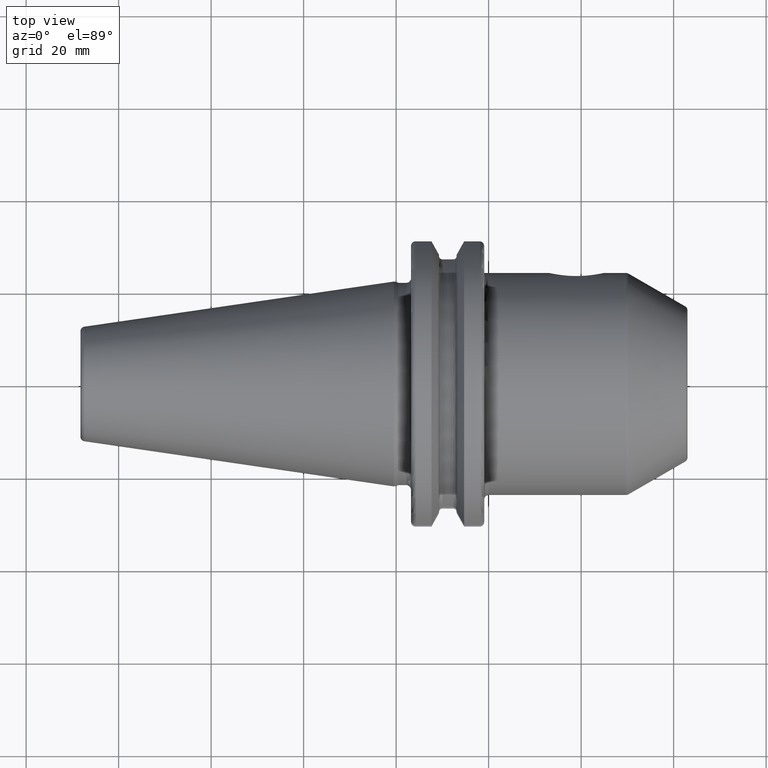
[diagram: clean part render]
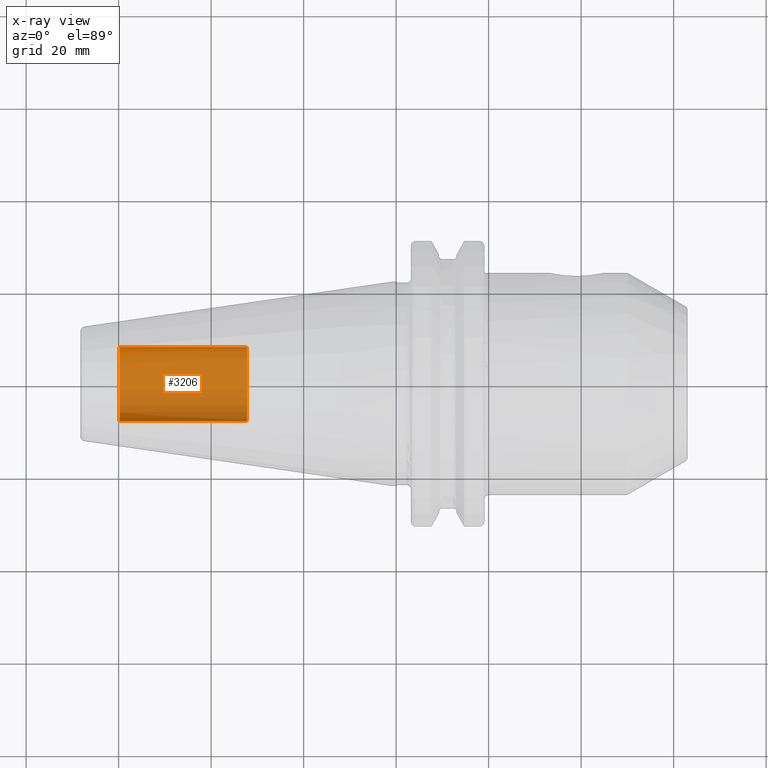
[diagram: x-ray — body ghosted, one internal face saturated and labeled with its STEP entity id]
A machine part, top view, then the same camera in x-ray: the body is ghosted and one INTERNAL B-rep face — a face not visible from any outside direction — is saturated and labeled: STEP entity #3206.
In plain terms, the highlighted cylindrical surface (partial cylindrical patch) has radius 8.0028 mm, axis along (1, 0, 0).
Its self-contained STEP definition (entity closure, byte-faithful):
#3141=CARTESIAN_POINT('',(-5.98E1,0.E0,0.E0));
#3142=DIRECTION('',(-1.E0,0.E0,0.E0));
#3143=DIRECTION('',(0.E0,1.E0,0.E0));
#3144=AXIS2_PLACEMENT_3D('',#3141,#3142,#3143);
#3146=DIRECTION('',(1.E0,0.E0,0.E0));
#3147=VECTOR('',#3146,2.755E1);
#3148=CARTESIAN_POINT('',(-5.98E1,-8.00275E0,0.E0));
#3149=LINE('',#3148,#3147);
#3155=DIRECTION('',(1.E0,0.E0,0.E0));
#3156=VECTOR('',#3155,2.755E1);
#3157=CARTESIAN_POINT('',(-5.98E1,8.00275E0,0.E0));
#3158=LINE('',#3157,#3156);
#3164=CARTESIAN_POINT('',(-3.225E1,0.E0,0.E0));
#3165=DIRECTION('',(1.E0,0.E0,0.E0));
#3166=DIRECTION('',(0.E0,-1.E0,0.E0));
#3167=AXIS2_PLACEMENT_3D('',#3164,#3165,#3166);
#3179=CARTESIAN_POINT('',(-5.98E1,8.00275E0,0.E0));
#3180=CARTESIAN_POINT('',(-5.98E1,-8.00275E0,0.E0));
#3181=VERTEX_POINT('',#3179);
#3182=VERTEX_POINT('',#3180);
#3183=CARTESIAN_POINT('',(-3.225E1,8.00275E0,0.E0));
#3184=CARTESIAN_POINT('',(-3.225E1,-8.00275E0,0.E0));
#3185=VERTEX_POINT('',#3183);
#3186=VERTEX_POINT('',#3184);
#3191=CARTESIAN_POINT('',(-5.98E1,0.E0,0.E0));
#3192=DIRECTION('',(1.E0,0.E0,0.E0));
#3193=DIRECTION('',(0.E0,1.E0,0.E0));
#3194=AXIS2_PLACEMENT_3D('',#3191,#3192,#3193);
#3195=CYLINDRICAL_SURFACE('',#3194,8.00275E0);
#3197=ORIENTED_EDGE('',*,*,#3196,.T.);
#3199=ORIENTED_EDGE('',*,*,#3198,.T.);
#3201=ORIENTED_EDGE('',*,*,#3200,.T.);
#3203=ORIENTED_EDGE('',*,*,#3202,.F.);
#3204=EDGE_LOOP('',(#3197,#3199,#3201,#3203));
#3205=FACE_OUTER_BOUND('',#3204,.F.);
#3206=ADVANCED_FACE('',(#3205),#3195,.T.);
#3145=CIRCLE('',#3144,8.00275E0);
#3168=CIRCLE('',#3167,8.00275E0);
#3196=EDGE_CURVE('',#3181,#3182,#3145,.T.);
#3198=EDGE_CURVE('',#3182,#3186,#3149,.T.);
#3200=EDGE_CURVE('',#3186,#3185,#3168,.T.);
#3202=EDGE_CURVE('',#3181,#3185,#3158,.T.);